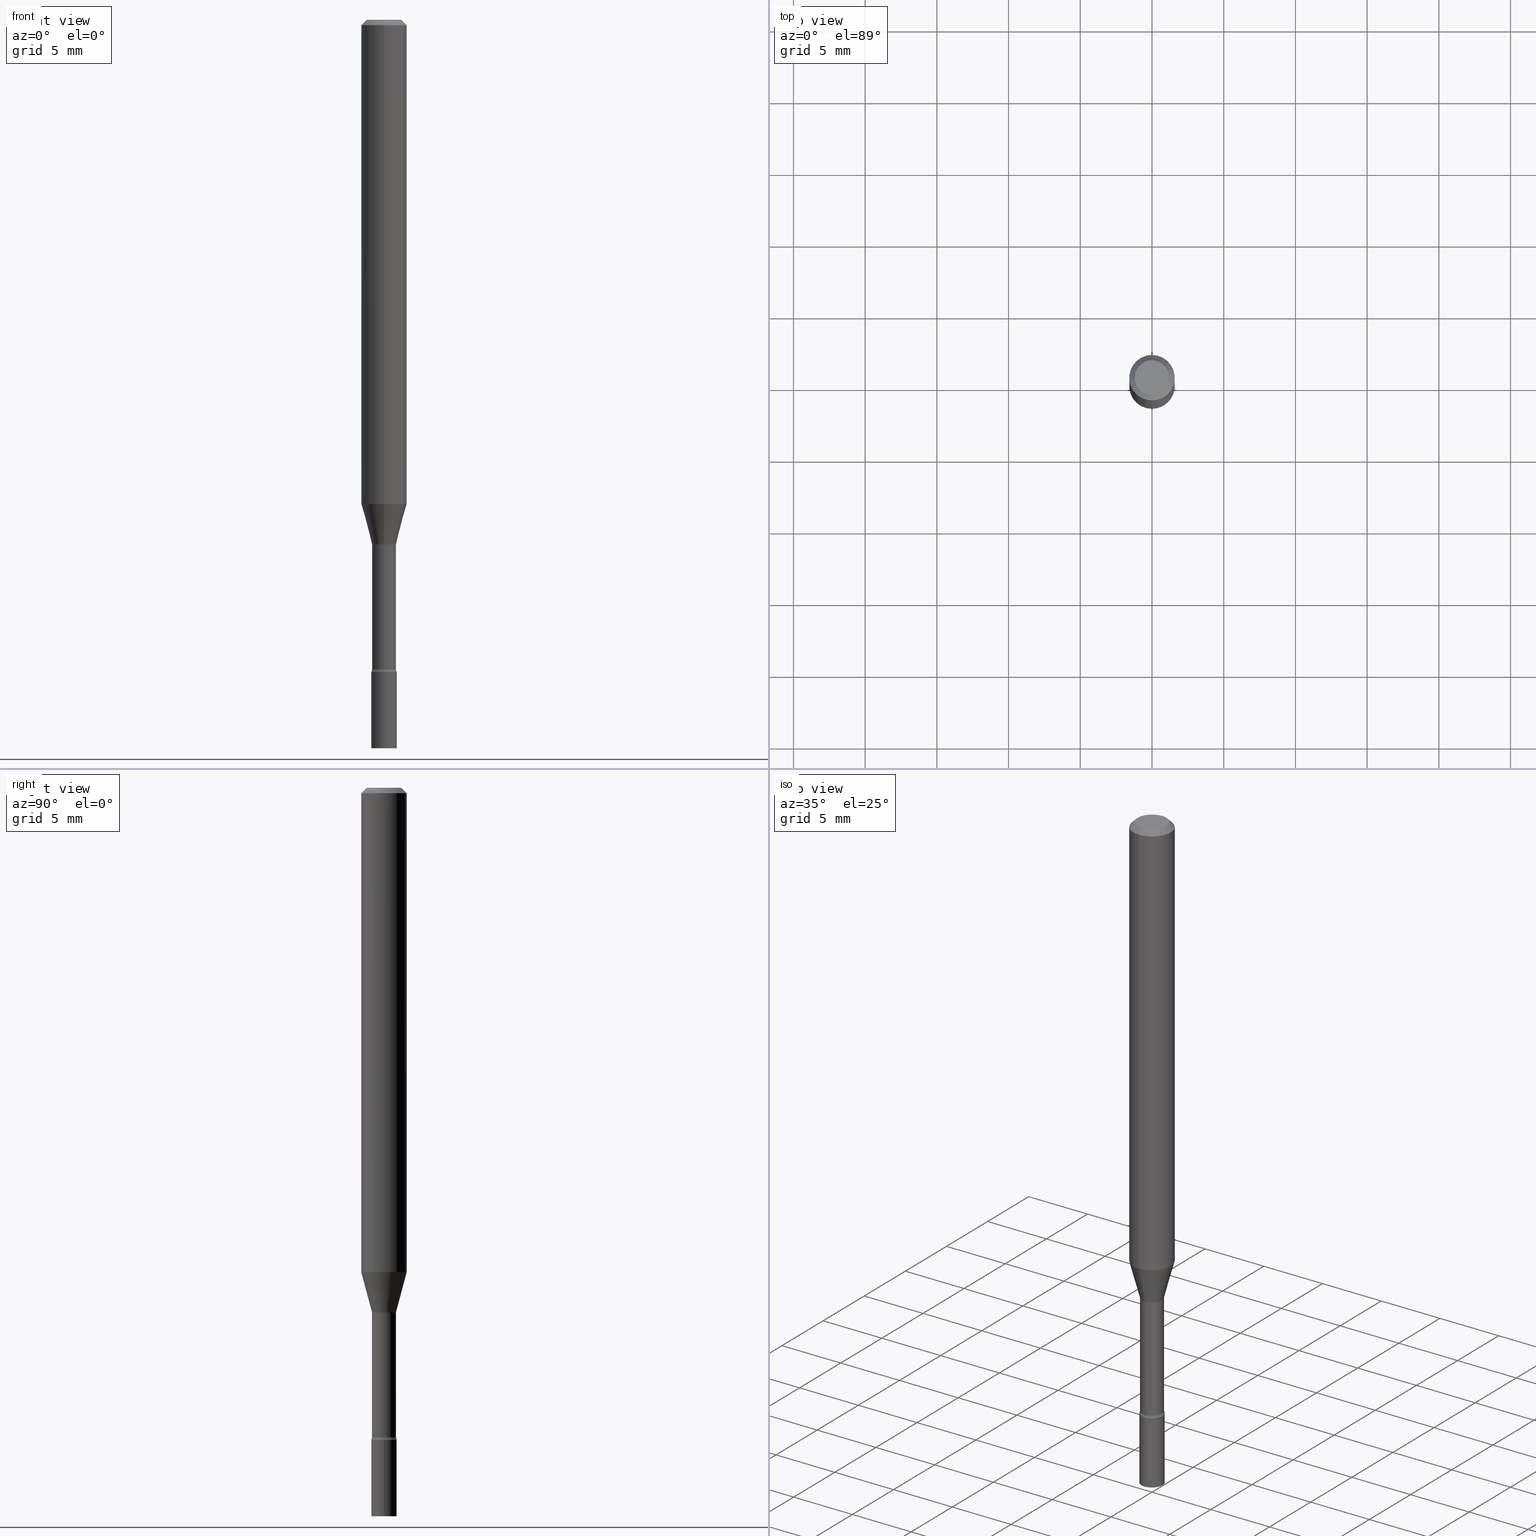
[diagram: canonical four-view strip — front | top / right | iso, engineering-drawing reading convention]
A machine part, canonical four-view strip (front | top / right | iso — engineering-drawing reading convention). The complete STEP part file that produces these views, byte-faithful:
ISO-10303-21;
HEADER;
FILE_DESCRIPTION (( 'STEP AP203' ),
    '1' );
FILE_NAME ('01326.STEP',
    '2024-03-08T21:14:12',
    ( '' ),
    ( '' ),
    'SwSTEP 2.0',
    'SolidWorks 2023',
    '' );
FILE_SCHEMA (( 'CONFIG_CONTROL_DESIGN' ));
ENDSEC;

DATA;
#1 = ORIENTED_EDGE ( 'NONE', *, *, #173, .T. ) ;
#2 = CARTESIAN_POINT ( 'NONE',  ( -2.297394720958429005E-16, -0.03290000000000503633, -1.441974787463810914 ) ) ;
#3 = ORIENTED_EDGE ( 'NONE', *, *, #240, .T. ) ;
#4 = FACE_OUTER_BOUND ( 'NONE', #79, .T. ) ;
#5 = DIRECTION ( 'NONE',  ( -6.982962677686265922E-15, -1.000000000000000000, 3.491429120456710013E-15 ) ) ;
#6 = LINE ( 'NONE', #322, #106 ) ;
#7 = CIRCLE ( 'NONE', #224, 0.03500000000000000333 ) ;
#8 = DIRECTION ( 'NONE',  ( -6.982962677686265133E-15, -1.000000000000000000, 0.000000000000000000 ) ) ;
#9 = ORIENTED_EDGE ( 'NONE', *, *, #265, .T. ) ;
#10 = COORDINATED_UNIVERSAL_TIME_OFFSET ( 5, 0, .BEHIND. ) ;
#11 = DIRECTION ( 'NONE',  ( -2.445505270089493471E-29, 3.491429120456710013E-15, 1.000000000000000000 ) ) ;
#12 = DIRECTION ( 'NONE',  ( -2.445505270089493471E-29, 3.491429120456710013E-15, 1.000000000000000000 ) ) ;
#13 = FACE_OUTER_BOUND ( 'NONE', #134, .T. ) ;
#14 = ORIENTED_EDGE ( 'NONE', *, *, #383, .T. ) ;
#15 = APPROVAL_ROLE ( '' ) ;
#16 = EDGE_CURVE ( 'NONE', #390, #435, #164, .T. ) ;
#17 = CIRCLE ( 'NONE', #111, 0.03500000000000000333 ) ;
#18 = AXIS2_PLACEMENT_3D ( 'NONE', #19, #457, #147 ) ;
#19 = CARTESIAN_POINT ( 'NONE',  ( 4.377389163071394665E-29, -6.249751596529231267E-15, -1.790000000000000036 ) ) ;
#20 = CALENDAR_DATE ( 2024, 8, 3 ) ;
#21 = DIRECTION ( 'NONE',  ( 1.000000000000000000, -6.982962677686276966E-15, 0.000000000000000000 ) ) ;
#22 = COORDINATED_UNIVERSAL_TIME_OFFSET ( 5, 0, .BEHIND. ) ;
#23 = CARTESIAN_POINT ( 'NONE',  ( 3.516862791996960792E-29, -5.020998038650528484E-15, -1.438092501787272992 ) ) ;
#24 = CARTESIAN_POINT ( 'NONE',  ( -0.03500000000000000333, -6.367667179591725930E-15, -2.000000000000000000 ) ) ;
#25 = ADVANCED_FACE ( 'NONE', ( #70 ), #73, .T. ) ;
#26 = LINE ( 'NONE', #347, #463 ) ;
#27 = CIRCLE ( 'NONE', #310, 0.03500000000000000333 ) ;
#28 = CIRCLE ( 'NONE', #502, 0.03290000000000000563 ) ;
#29 = ORIENTED_EDGE ( 'NONE', *, *, #389, .F. ) ;
#30 = FACE_OUTER_BOUND ( 'NONE', #303, .T. ) ;
#31 = ADVANCED_FACE ( 'NONE', ( #337 ), #447, .T. ) ;
#32 = VECTOR ( 'NONE', #409, 39.37007874015748143 ) ;
#33 = DIRECTION ( 'NONE',  ( -2.445468806185136597E-29, 3.491481338843145583E-15, 1.000000000000000000 ) ) ;
#34 = ORIENTED_EDGE ( 'NONE', *, *, #487, .T. ) ;
#35 = EDGE_CURVE ( 'NONE', #435, #372, #280, .T. ) ;
#36 = CARTESIAN_POINT ( 'NONE',  ( -2.444036937189758391E-16, -0.03500000000000629691, -1.789999999999999813 ) ) ;
#37 = AXIS2_PLACEMENT_3D ( 'NONE', #196, #84, #244 ) ;
#38 = DIRECTION ( 'NONE',  ( -2.445505270089493471E-29, 3.491429120456710013E-15, 1.000000000000000000 ) ) ;
#39 = ORIENTED_EDGE ( 'NONE', *, *, #148, .T. ) ;
#40 = CARTESIAN_POINT ( 'NONE',  ( 3.516862791996960792E-29, -5.020998038650528484E-15, -1.438092501787272992 ) ) ;
#41 = DIRECTION ( 'NONE',  ( 4.937700262164548042E-15, 0.7071067811865451302, -0.7071067811865499042 ) ) ;
#42 = VERTEX_POINT ( 'NONE', #283 ) ;
#43 = CARTESIAN_POINT ( 'NONE',  ( 4.358670540980283234E-29, -6.223026365132013835E-15, -1.782345589506695971 ) ) ;
#44 = CARTESIAN_POINT ( 'NONE',  ( 4.377389163071394665E-29, -6.249751596529231267E-15, -1.790000000000000036 ) ) ;
#45 = APPROVAL_PERSON_ORGANIZATION ( #93, #349, #15 ) ;
#46 = AXIS2_PLACEMENT_3D ( 'NONE', #117, #299, #346 ) ;
#47 = COORDINATED_UNIVERSAL_TIME_OFFSET ( 5, 0, .BEHIND. ) ;
#48 = CIRCLE ( 'NONE', #351, 0.03341111260566399094 ) ;
#49 = CARTESIAN_POINT ( 'NONE',  ( 4.377454433460193529E-29, -6.249658125617510272E-15, -1.790000000000000036 ) ) ;
#50 = DIRECTION ( 'NONE',  ( -2.445468806185136877E-29, 3.491481338843145188E-15, 1.000000000000000000 ) ) ;
#51 = SHAPE_DEFINITION_REPRESENTATION ( #482, #109 ) ;
#52 = EDGE_CURVE ( 'NONE', #307, #397, #342, .T. ) ;
#53 = DIRECTION ( 'NONE',  ( -2.445505270089493471E-29, 3.491429120456710013E-15, 1.000000000000000000 ) ) ;
#54 = EDGE_CURVE ( 'NONE', #372, #435, #17, .T. ) ;
#55 = DIRECTION ( 'NONE',  ( 1.000000000000000000, 0.000000000000000000, 0.000000000000000000 ) ) ;
#56 = DIRECTION ( 'NONE',  ( -6.982962677686265922E-15, -1.000000000000000000, 0.000000000000000000 ) ) ;
#57 = ADVANCED_FACE ( 'NONE', ( #330 ), #412, .F. ) ;
#58 = APPROVAL_ROLE ( '' ) ;
#59 =( GEOMETRIC_REPRESENTATION_CONTEXT ( 3 ) GLOBAL_UNCERTAINTY_ASSIGNED_CONTEXT ( ( #245 ) ) GLOBAL_UNIT_ASSIGNED_CONTEXT ( ( #456, #505, #63 ) ) REPRESENTATION_CONTEXT ( 'NONE', 'WORKASPACE' ) );
#60 = AXIS2_PLACEMENT_3D ( 'NONE', #253, #478, #467 ) ;
#61 = CARTESIAN_POINT ( 'NONE',  ( 3.840629472727447874E-16, 0.04749999999999999362, -1.947592745229184365E-16 ) ) ;
#62 = DIRECTION ( 'NONE',  ( -6.982962677686265133E-15, -1.000000000000000000, 0.000000000000000000 ) ) ;
#63 =( NAMED_UNIT ( * ) SI_UNIT ( $, .STERADIAN. ) SOLID_ANGLE_UNIT ( ) );
#64 = DIRECTION ( 'NONE',  ( -6.982962677686263555E-15, -1.000000000000000000, 0.000000000000000000 ) ) ;
#65 = CARTESIAN_POINT ( 'NONE',  ( -3.344839122611368617E-16, -0.04790000000000502883, -1.441974787463810692 ) ) ;
#66 = AXIS2_PLACEMENT_3D ( 'NONE', #65, #105, #64 ) ;
#67 = CARTESIAN_POINT ( 'NONE',  ( 0.000000000000000000, 0.000000000000000000, 0.000000000000000000 ) ) ;
#68 = CIRCLE ( 'NONE', #366, 0.06250000000000000000 ) ;
#69 = ORIENTED_EDGE ( 'NONE', *, *, #128, .T. ) ;
#70 = FACE_OUTER_BOUND ( 'NONE', #170, .T. ) ;
#71 = EDGE_CURVE ( 'NONE', #386, #42, #27, .T. ) ;
#72 = ORIENTED_EDGE ( 'NONE', *, *, #271, .F. ) ;
#73 = CONICAL_SURFACE ( 'NONE', #450, 0.03341111260566399094, 0.2617993877991494633 ) ;
#74 = AXIS2_PLACEMENT_3D ( 'NONE', #433, #385, #21 ) ;
#75 = DIRECTION ( 'NONE',  ( -2.445505270089493752E-29, 3.491429120456710013E-15, 1.000000000000000000 ) ) ;
#76 = VERTEX_POINT ( 'NONE', #492 ) ;
#77 = LENGTH_MEASURE_WITH_UNIT ( LENGTH_MEASURE( 0.02539999999999999897 ), #276 );
#78 = EDGE_CURVE ( 'NONE', #250, #42, #488, .T. ) ;
#79 = EDGE_LOOP ( 'NONE', ( #361, #345, #162, #359 ) ) ;
#80 = CARTESIAN_POINT ( 'NONE',  ( 4.440892098500948609E-16, 0.06249999999999532319, -1.329531296095961546 ) ) ;
#81 = ORIENTED_EDGE ( 'NONE', *, *, #78, .T. ) ;
#82 = DIRECTION ( 'NONE',  ( -2.445505270089493471E-29, 3.491429120456710013E-15, 1.000000000000000000 ) ) ;
#83 = CARTESIAN_POINT ( 'NONE',  ( 3.526304362048191557E-29, -5.034628061512206795E-15, -1.441974787463810914 ) ) ;
#84 = DIRECTION ( 'NONE',  ( 2.445505270089493471E-29, -3.491429120456710013E-15, -1.000000000000000000 ) ) ;
#85 = DIRECTION ( 'NONE',  ( -6.982962677686265922E-15, -1.000000000000000000, 4.370956789862821150E-15 ) ) ;
#86 = DIRECTION ( 'NONE',  ( -6.982962677686265922E-15, -1.000000000000000000, 3.491429120456709618E-15 ) ) ;
#87 = DIRECTION ( 'NONE',  ( -2.445468806185136597E-29, 3.491481338843145583E-15, 1.000000000000000000 ) ) ;
#88 = ORIENTED_EDGE ( 'NONE', *, *, #272, .T. ) ;
#89 = APPROVAL_STATUS ( 'not_yet_approved' ) ;
#90 = TOROIDAL_SURFACE ( 'NONE', #432, 0.04790000000000003977, 0.01500000000000007924 ) ;
#91 = CARTESIAN_POINT ( 'NONE',  ( 2.444036937190630575E-16, 0.03499999999999375139, -1.790000000000000036 ) ) ;
#92 = ADVANCED_FACE ( 'NONE', ( #374 ), #357, .F. ) ;
#93 = PERSON_AND_ORGANIZATION ( #229, #472 ) ;
#94 = DIRECTION ( 'NONE',  ( -2.445468806185136597E-29, 3.491481338843145583E-15, 1.000000000000000000 ) ) ;
#95 = APPLICATION_PROTOCOL_DEFINITION ( 'international standard', 'config_control_design', 1994, #501 ) ;
#96 = CARTESIAN_POINT ( 'NONE',  ( 0.03500000000000000333, -7.227366371405310342E-15, -2.000000000000000000 ) ) ;
#97 = VECTOR ( 'NONE', #75, 39.37007874015748143 ) ;
#98 = CARTESIAN_POINT ( 'NONE',  ( 4.440892098500952553E-16, 0.06249999999999993755, -0.01500000000000024751 ) ) ;
#99 = EDGE_CURVE ( 'NONE', #277, #264, #323, .T. ) ;
#100 = DIRECTION ( 'NONE',  ( -6.982962677686265922E-15, -1.000000000000000000, 3.491429120456709618E-15 ) ) ;
#101 = EDGE_LOOP ( 'NONE', ( #316, #305, #514, #194 ) ) ;
#102 = CYLINDRICAL_SURFACE ( 'NONE', #286, 0.06250000000000000000 ) ;
#103 = ORIENTED_EDGE ( 'NONE', *, *, #144, .T. ) ;
#104 = APPROVAL_PERSON_ORGANIZATION ( #257, #209, #334 ) ;
#105 = DIRECTION ( 'NONE',  ( -1.000000000000000000, 6.982962677686265922E-15, -4.883557194083112340E-29 ) ) ;
#106 = VECTOR ( 'NONE', #273, 39.37007874015748143 ) ;
#107 = ADVANCED_FACE ( 'NONE', ( #503 ), #406, .F. ) ;
#108 = ORIENTED_EDGE ( 'NONE', *, *, #188, .F. ) ;
#109 = ADVANCED_BREP_SHAPE_REPRESENTATION ( '01326', ( #459, #129, #208 ), #59 ) ;
#110 = EDGE_CURVE ( 'NONE', #307, #205, #331, .T. ) ;
#111 = AXIS2_PLACEMENT_3D ( 'NONE', #285, #452, #124 ) ;
#112 = CIRCLE ( 'NONE', #379, 0.06250000000000000000 ) ;
#113 = ORIENTED_EDGE ( 'NONE', *, *, #110, .F. ) ;
#114 = DIRECTION ( 'NONE',  ( -2.445505270089493471E-29, 3.491429120456710013E-15, 1.000000000000000000 ) ) ;
#115 = VERTEX_POINT ( 'NONE', #248 ) ;
#116 = LINE ( 'NONE', #167, #311 ) ;
#117 = CARTESIAN_POINT ( 'NONE',  ( 0.000000000000000000, 0.000000000000000000, 0.000000000000000000 ) ) ;
#118 = DIRECTION ( 'NONE',  ( -2.445468806185136597E-29, 3.491481338843145583E-15, 1.000000000000000000 ) ) ;
#119 = LOCAL_TIME ( 16, 14, 12.00000000000000000, #139 ) ;
#120 = AXIS2_PLACEMENT_3D ( 'NONE', #49, #11, #56 ) ;
#121 = CC_DESIGN_PERSON_AND_ORGANIZATION_ASSIGNMENT ( #422, #373, ( #415 ) ) ;
#122 = AXIS2_PLACEMENT_3D ( 'NONE', #133, #290, #512 ) ;
#123 = DIRECTION ( 'NONE',  ( -6.982962677686266711E-15, -1.000000000000000000, 0.000000000000000000 ) ) ;
#124 = DIRECTION ( 'NONE',  ( -6.982962677686265922E-15, -1.000000000000000000, 0.000000000000000000 ) ) ;
#125 = LINE ( 'NONE', #445, #423 ) ;
#126 = DIRECTION ( 'NONE',  ( -2.445505270089493191E-29, 3.491429120456710013E-15, 1.000000000000000000 ) ) ;
#127 = CALENDAR_DATE ( 2024, 8, 3 ) ;
#128 = EDGE_CURVE ( 'NONE', #277, #313, #239, .T. ) ;
#129 = MANIFOLD_SOLID_BREP ( 'Body-Move/Copy2[2]', #479 ) ;
#130 = DIRECTION ( 'NONE',  ( 2.438088387897960049E-29, -3.491481338843145188E-15, -1.000000000000000000 ) ) ;
#131 = TOROIDAL_SURFACE ( 'NONE', #140, 0.04790000000000003977, 0.01500000000000007924 ) ;
#132 = EDGE_CURVE ( 'NONE', #498, #166, #437, .T. ) ;
#133 = CARTESIAN_POINT ( 'NONE',  ( 3.668257905134247424E-31, -5.237143680685075742E-17, -0.01500000000000003067 ) ) ;
#134 = EDGE_LOOP ( 'NONE', ( #29, #103, #327, #504 ) ) ;
#135 = PERSON_AND_ORGANIZATION_ROLE ( 'design_supplier' ) ;
#136 = DIRECTION ( 'NONE',  ( -6.982962677686265922E-15, -1.000000000000000000, 4.370956789862821150E-15 ) ) ;
#137 = APPROVAL_DATE_TIME ( #369, #349 ) ;
#138 = CARTESIAN_POINT ( 'NONE',  ( 2.374002335562077687E-16, 0.03341111260565896718, -1.438092501787272992 ) ) ;
#139 = COORDINATED_UNIVERSAL_TIME_OFFSET ( 5, 0, .BEHIND. ) ;
#140 = AXIS2_PLACEMENT_3D ( 'NONE', #43, #38, #395 ) ;
#141 = DIRECTION ( 'NONE',  ( -2.445505270089493471E-29, 3.491429120456710013E-15, 1.000000000000000000 ) ) ;
#142 = DIRECTION ( 'NONE',  ( 6.982962677686265922E-15, 1.000000000000000000, -3.491429120456710013E-15 ) ) ;
#143 = FACE_OUTER_BOUND ( 'NONE', #247, .T. ) ;
#144 = EDGE_CURVE ( 'NONE', #313, #115, #419, .T. ) ;
#145 = ORIENTED_EDGE ( 'NONE', *, *, #309, .F. ) ;
#146 = EDGE_CURVE ( 'NONE', #42, #386, #296, .T. ) ;
#147 = DIRECTION ( 'NONE',  ( 1.000000000000000000, -6.982962677686265922E-15, 4.876176775795935793E-29 ) ) ;
#148 = EDGE_CURVE ( 'NONE', #250, #254, #7, .T. ) ;
#149 = AXIS2_PLACEMENT_3D ( 'NONE', #493, #519, #234 ) ;
#150 = ORIENTED_EDGE ( 'NONE', *, *, #35, .T. ) ;
#151 = DIRECTION ( 'NONE',  ( -2.445505270089493471E-29, 3.491429120456710013E-15, 1.000000000000000000 ) ) ;
#152 = EDGE_LOOP ( 'NONE', ( #200, #333 ) ) ;
#153 = CIRCLE ( 'NONE', #343, 0.04749999999999999362 ) ;
#154 = CARTESIAN_POINT ( 'NONE',  ( -0.03500000000000000333, -6.367667179591725930E-15, -1.790000000000000036 ) ) ;
#155 = ORIENTED_EDGE ( 'NONE', *, *, #188, .T. ) ;
#156 = ORIENTED_EDGE ( 'NONE', *, *, #309, .T. ) ;
#157 = CYLINDRICAL_SURFACE ( 'NONE', #491, 0.03500000000000000333 ) ;
#158 = CC_DESIGN_PERSON_AND_ORGANIZATION_ASSIGNMENT ( #294, #211, ( #197 ) ) ;
#159 = DIRECTION ( 'NONE',  ( 7.105427357600998703E-15, 1.000000000000000000, 0.000000000000000000 ) ) ;
#160 = ORIENTED_EDGE ( 'NONE', *, *, #272, .F. ) ;
#161 = DIRECTION ( 'NONE',  ( -2.445505270089493471E-29, 3.491429120456710013E-15, 1.000000000000000000 ) ) ;
#162 = ORIENTED_EDGE ( 'NONE', *, *, #99, .T. ) ;
#163 = LOCAL_TIME ( 16, 14, 12.00000000000000000, #47 ) ;
#164 = CIRCLE ( 'NONE', #60, 0.01500000000000007924 ) ;
#165 = AXIS2_PLACEMENT_3D ( 'NONE', #232, #270, #189 ) ;
#166 = VERTEX_POINT ( 'NONE', #377 ) ;
#167 = CARTESIAN_POINT ( 'NONE',  ( -2.333085523452895883E-16, -0.03341111260566900776, -1.438092501787272992 ) ) ;
#168 = CARTESIAN_POINT ( 'NONE',  ( 3.516862791996960792E-29, -5.020998038650528484E-15, -1.438092501787272992 ) ) ;
#169 = APPROVAL ( #89, 'UNSPECIFIED' ) ;
#170 = EDGE_LOOP ( 'NONE', ( #14, #399, #72, #321 ) ) ;
#171 = SECURITY_CLASSIFICATION_LEVEL ( 'unclassified' ) ;
#172 = DIRECTION ( 'NONE',  ( -6.982962677686266711E-15, -1.000000000000000000, 0.000000000000000000 ) ) ;
#173 = EDGE_CURVE ( 'NONE', #420, #205, #516, .T. ) ;
#174 = EDGE_LOOP ( 'NONE', ( #475, #438 ) ) ;
#175 = MECHANICAL_CONTEXT ( 'NONE', #469, 'mechanical' ) ;
#176 = DIRECTION ( 'NONE',  ( -2.445505270089493471E-29, 3.491429120456710013E-15, 1.000000000000000000 ) ) ;
#177 = EDGE_LOOP ( 'NONE', ( #9, #156, #453, #160 ) ) ;
#178 = COORDINATED_UNIVERSAL_TIME_OFFSET ( 5, 0, .BEHIND. ) ;
#179 = DIRECTION ( 'NONE',  ( -2.445505270089493471E-29, 3.491429120456710013E-15, 1.000000000000000000 ) ) ;
#180 = DIRECTION ( 'NONE',  ( 0.000000000000000000, 0.000000000000000000, 1.000000000000000000 ) ) ;
#181 = CARTESIAN_POINT ( 'NONE',  ( 3.316907271900976096E-16, 0.04749999999999999362, -1.803010788723060737E-16 ) ) ;
#182 = ADVANCED_FACE ( 'NONE', ( #497 ), #315, .T. ) ;
#183 = CARTESIAN_POINT ( 'NONE',  ( 4.358735532259390602E-29, -6.222933293921259264E-15, -1.782345589506695971 ) ) ;
#184 = AXIS2_PLACEMENT_3D ( 'NONE', #83, #53, #363 ) ;
#185 = AXIS2_PLACEMENT_3D ( 'NONE', #455, #130, #287 ) ;
#186 = ADVANCED_FACE ( 'NONE', ( #13 ), #451, .T. ) ;
#187 = DIRECTION ( 'NONE',  ( -2.445505270089493752E-29, 3.491429120456710013E-15, 1.000000000000000000 ) ) ;
#188 = EDGE_CURVE ( 'NONE', #498, #264, #302, .T. ) ;
#189 = DIRECTION ( 'NONE',  ( -6.982962677686265922E-15, -1.000000000000000000, 0.000000000000000000 ) ) ;
#190 = EDGE_LOOP ( 'NONE', ( #113, #348, #275, #1 ) ) ;
#191 = DESIGN_CONTEXT ( 'detailed design', #501, 'design' ) ;
#192 = EDGE_CURVE ( 'NONE', #397, #420, #480, .T. ) ;
#193 = DIRECTION ( 'NONE',  ( -2.445468806185136877E-29, 3.491481338843145188E-15, 1.000000000000000000 ) ) ;
#194 = ORIENTED_EDGE ( 'NONE', *, *, #192, .F. ) ;
#195 = EDGE_LOOP ( 'NONE', ( #485, #402, #476, #324 ) ) ;
#196 = CARTESIAN_POINT ( 'NONE',  ( 3.668257905134247424E-31, -5.237143680685075742E-17, -0.01500000000000003067 ) ) ;
#197 = SECURITY_CLASSIFICATION ( '', '', #171 ) ;
#198 = VECTOR ( 'NONE', #41, 39.37007874015748143 ) ;
#199 = CONICAL_SURFACE ( 'NONE', #358, 0.03341111260566399094, 0.2617993877991494633 ) ;
#200 = ORIENTED_EDGE ( 'NONE', *, *, #146, .T. ) ;
#201 = CARTESIAN_POINT ( 'NONE',  ( 4.358670540980283234E-29, -6.223026365132013835E-15, -1.782345589506695971 ) ) ;
#202 = EDGE_CURVE ( 'NONE', #390, #76, #393, .T. ) ;
#203 = EDGE_LOOP ( 'NONE', ( #145, #441, #88, #416 ) ) ;
#204 = CARTESIAN_POINT ( 'NONE',  ( 3.403499704291231294E-16, 0.04789999999999496050, -1.441974787463811136 ) ) ;
#205 = VERTEX_POINT ( 'NONE', #381 ) ;
#206 = CYLINDRICAL_SURFACE ( 'NONE', #241, 0.03500000000000000333 ) ;
#207 = DIRECTION ( 'NONE',  ( 1.000000000000000000, -6.982962677686276966E-15, 0.000000000000000000 ) ) ;
#208 = AXIS2_PLACEMENT_3D ( 'NONE', #340, #180, #55 ) ;
#209 = APPROVAL ( #297, 'UNSPECIFIED' ) ;
#210 = CIRCLE ( 'NONE', #304, 0.03289999999999995706 ) ;
#211 = PERSON_AND_ORGANIZATION_ROLE ( 'classification_officer' ) ;
#212 = DIRECTION ( 'NONE',  ( -6.982962677686265133E-15, -1.000000000000000000, 3.491429120456710013E-15 ) ) ;
#213 = ADVANCED_FACE ( 'NONE', ( #266 ), #293, .T. ) ;
#214 = CALENDAR_DATE ( 2024, 8, 3 ) ;
#215 = CARTESIAN_POINT ( 'NONE',  ( 3.526356942078927021E-29, -5.034552763915523754E-15, -1.441974787463810914 ) ) ;
#216 = EDGE_LOOP ( 'NONE', ( #69, #495 ) ) ;
#217 = APPROVAL_DATE_TIME ( #417, #209 ) ;
#218 = CARTESIAN_POINT ( 'NONE',  ( 7.071518731911501073E-46, -1.009595306476170390E-31, -2.891639130122470725E-17 ) ) ;
#219 = PRODUCT_RELATED_PRODUCT_CATEGORY ( 'detail', '', ( #415 ) ) ;
#220 = FACE_OUTER_BOUND ( 'NONE', #203, .T. ) ;
#221 = DIRECTION ( 'NONE',  ( -2.445505270089493471E-29, 3.491429120456710013E-15, 1.000000000000000000 ) ) ;
#222 = CARTESIAN_POINT ( 'NONE',  ( 3.407447217031514627E-16, 0.03341111260565896718, -1.438092501787272992 ) ) ;
#223 = EDGE_CURVE ( 'NONE', #115, #264, #112, .T. ) ;
#224 = AXIS2_PLACEMENT_3D ( 'NONE', #370, #94, #414 ) ;
#225 = ORIENTED_EDGE ( 'NONE', *, *, #265, .F. ) ;
#226 = AXIS2_PLACEMENT_3D ( 'NONE', #168, #367, #8 ) ;
#227 = CIRCLE ( 'NONE', #518, 0.06250000000000000000 ) ;
#228 = DIRECTION ( 'NONE',  ( -2.445505270089493471E-29, 3.491429120456710013E-15, 1.000000000000000000 ) ) ;
#229 = PERSON ( 'UNSPECIFIED', 'UNSPECIFIED', 'UNSPECIFIED', ('UNSPECIFIED'), ('UNSPECIFIED'), ('UNSPECIFIED') ) ;
#230 = ORIENTED_EDGE ( 'NONE', *, *, #520, .F. ) ;
#231 = AXIS2_PLACEMENT_3D ( 'NONE', #44, #87, #207 ) ;
#232 = CARTESIAN_POINT ( 'NONE',  ( 4.358735532259390602E-29, -6.222933293921259264E-15, -1.782345589506695971 ) ) ;
#233 = EDGE_LOOP ( 'NONE', ( #470, #391 ) ) ;
#234 = DIRECTION ( 'NONE',  ( -6.982962677686263555E-15, -1.000000000000000000, 0.000000000000000000 ) ) ;
#235 = ORIENTED_EDGE ( 'NONE', *, *, #487, .F. ) ;
#236 = ORIENTED_EDGE ( 'NONE', *, *, #223, .F. ) ;
#237 = EDGE_CURVE ( 'NONE', #307, #498, #384, .T. ) ;
#238 = FACE_OUTER_BOUND ( 'NONE', #375, .T. ) ;
#239 = CIRCLE ( 'NONE', #319, 0.04749999999999999362 ) ;
#240 = EDGE_CURVE ( 'NONE', #254, #250, #332, .T. ) ;
#241 = AXIS2_PLACEMENT_3D ( 'NONE', #442, #33, #242 ) ;
#242 = DIRECTION ( 'NONE',  ( 1.000000000000000000, -6.982962677686265922E-15, 4.876176775795936353E-29 ) ) ;
#243 = CARTESIAN_POINT ( 'NONE',  ( 4.364351673553919652E-16, 0.06249999999999995143, -0.01500000000000024751 ) ) ;
#244 = DIRECTION ( 'NONE',  ( 6.982962677686265922E-15, 1.000000000000000000, -3.483106191921935554E-15 ) ) ;
#245 = UNCERTAINTY_MEASURE_WITH_UNIT (LENGTH_MEASURE( 1.000000000000000082E-05 ), #456, 'distance_accuracy_value', 'NONE');
#246 = CARTESIAN_POINT ( 'NONE',  ( -4.287811248607203282E-16, -0.06250000000000005551, -0.01499999999999981209 ) ) ;
#247 = EDGE_LOOP ( 'NONE', ( #108, #449, #388, #396 ) ) ;
#248 = CARTESIAN_POINT ( 'NONE',  ( -4.364351673553912750E-16, -0.06250000000000005551, -0.01499999999999981209 ) ) ;
#249 = AXIS2_PLACEMENT_3D ( 'NONE', #181, #429, #142 ) ;
#250 = VERTEX_POINT ( 'NONE', #96 ) ;
#251 = APPROVAL_DATE_TIME ( #380, #169 ) ;
#252 = DIRECTION ( 'NONE',  ( 1.000000000000000000, -7.105427357601001070E-15, 4.926314869051284576E-29 ) ) ;
#253 = CARTESIAN_POINT ( 'NONE',  ( 3.403499704291318069E-16, 0.04789999999999381558, -1.782345589506696193 ) ) ;
#254 = VERTEX_POINT ( 'NONE', #24 ) ;
#255 = CARTESIAN_POINT ( 'NONE',  ( 4.377389163071394665E-29, -6.249751596529231267E-15, -1.790000000000000036 ) ) ;
#256 = CC_DESIGN_PERSON_AND_ORGANIZATION_ASSIGNMENT ( #260, #135, ( #288 ) ) ;
#257 = PERSON_AND_ORGANIZATION ( #229, #472 ) ;
#258 = LINE ( 'NONE', #300, #425 ) ;
#259 = CONICAL_SURFACE ( 'NONE', #37, 0.06250000000000000000, 0.7853981633974483900 ) ;
#260 = PERSON_AND_ORGANIZATION ( #229, #472 ) ;
#261 = CARTESIAN_POINT ( 'NONE',  ( 0.000000000000000000, 0.000000000000000000, 0.000000000000000000 ) ) ;
#262 = CC_DESIGN_DATE_AND_TIME_ASSIGNMENT ( #382, #496, ( #197 ) ) ;
#263 = DIRECTION ( 'NONE',  ( -2.445505270089493471E-29, 3.491429120456710013E-15, 1.000000000000000000 ) ) ;
#264 = VERTEX_POINT ( 'NONE', #98 ) ;
#265 = EDGE_CURVE ( 'NONE', #76, #390, #210, .T. ) ;
#266 = FACE_OUTER_BOUND ( 'NONE', #152, .T. ) ;
#267 = APPROVAL_PERSON_ORGANIZATION ( #292, #169, #58 ) ;
#268 = AXIS2_PLACEMENT_3D ( 'NONE', #91, #126, #5 ) ;
#269 = VECTOR ( 'NONE', #339, 39.37007874015748854 ) ;
#270 = DIRECTION ( 'NONE',  ( -2.445505270089493471E-29, 3.491429120456710013E-15, 1.000000000000000000 ) ) ;
#271 = EDGE_CURVE ( 'NONE', #166, #498, #68, .T. ) ;
#272 = EDGE_CURVE ( 'NONE', #76, #420, #258, .T. ) ;
#273 = DIRECTION ( 'NONE',  ( -2.445505270089493752E-29, 3.491429120456710013E-15, 1.000000000000000000 ) ) ;
#274 = ADVANCED_FACE ( 'NONE', ( #424 ), #508, .F. ) ;
#275 = ORIENTED_EDGE ( 'NONE', *, *, #192, .T. ) ;
#276 =( LENGTH_UNIT ( ) NAMED_UNIT ( * ) SI_UNIT ( $, .METRE. ) );
#277 = VERTEX_POINT ( 'NONE', #61 ) ;
#278 = DIRECTION ( 'NONE',  ( -2.445468806185136597E-29, 3.491481338843145583E-15, 1.000000000000000000 ) ) ;
#279 = CC_DESIGN_APPROVAL ( #169, ( #197 ) ) ;
#280 = CIRCLE ( 'NONE', #120, 0.03500000000000000333 ) ;
#281 = DIRECTION ( 'NONE',  ( 1.000000000000000000, -6.982962677686276966E-15, 0.000000000000000000 ) ) ;
#282 = FACE_OUTER_BOUND ( 'NONE', #515, .T. ) ;
#283 = CARTESIAN_POINT ( 'NONE',  ( 0.03500000000000000333, -6.494155290248250444E-15, -1.790000000000000036 ) ) ;
#284 = CARTESIAN_POINT ( 'NONE',  ( 7.071518731911501073E-46, -1.009595306476170390E-31, -2.891639130122470725E-17 ) ) ;
#285 = CARTESIAN_POINT ( 'NONE',  ( 4.377454433460193529E-29, -6.249658125617510272E-15, -1.790000000000000036 ) ) ;
#286 = AXIS2_PLACEMENT_3D ( 'NONE', #67, #228, #387 ) ;
#287 = DIRECTION ( 'NONE',  ( -1.000000000000000000, 6.982962677686265922E-15, -4.876176775795935793E-29 ) ) ;
#288 = PRODUCT_DEFINITION_FORMATION_WITH_SPECIFIED_SOURCE ( 'ANY', '', #415, .NOT_KNOWN. ) ;
#289 = CALENDAR_DATE ( 2024, 8, 3 ) ;
#290 = DIRECTION ( 'NONE',  ( 2.445505270089493471E-29, -3.491429120456710013E-15, -1.000000000000000000 ) ) ;
#291 = ADVANCED_FACE ( 'NONE', ( #220 ), #295, .T. ) ;
#292 = PERSON_AND_ORGANIZATION ( #229, #472 ) ;
#293 = PLANE ( 'NONE',  #18 ) ;
#294 = PERSON_AND_ORGANIZATION ( #229, #472 ) ;
#295 = CYLINDRICAL_SURFACE ( 'NONE', #511, 0.03289999999999998481 ) ;
#296 = CIRCLE ( 'NONE', #231, 0.03500000000000000333 ) ;
#297 = APPROVAL_STATUS ( 'not_yet_approved' ) ;
#298 = DIRECTION ( 'NONE',  ( -2.445505270089493471E-29, 3.491429120456710013E-15, 1.000000000000000000 ) ) ;
#299 = DIRECTION ( 'NONE',  ( -2.445505270089493471E-29, 3.491429120456710013E-15, 1.000000000000000000 ) ) ;
#300 = CARTESIAN_POINT ( 'NONE',  ( -2.297394720958780541E-16, -0.03289999999999998481, 1.148680180630256997E-16 ) ) ;
#301 = EDGE_LOOP ( 'NONE', ( #230, #3, #81, #328 ) ) ;
#302 = LINE ( 'NONE', #471, #97 ) ;
#303 = EDGE_LOOP ( 'NONE', ( #436, #225, #34, #394 ) ) ;
#304 = AXIS2_PLACEMENT_3D ( 'NONE', #183, #179, #506 ) ;
#305 = ORIENTED_EDGE ( 'NONE', *, *, #110, .T. ) ;
#306 = ADVANCED_FACE ( 'NONE', ( #513 ), #466, .T. ) ;
#307 = VERTEX_POINT ( 'NONE', #222 ) ;
#308 = DIRECTION ( 'NONE',  ( -1.807323732225324223E-15, -0.2588190451025173533, 0.9659258262890690894 ) ) ;
#309 = EDGE_CURVE ( 'NONE', #390, #205, #26, .T. ) ;
#310 = AXIS2_PLACEMENT_3D ( 'NONE', #255, #118, #281 ) ;
#311 = VECTOR ( 'NONE', #308, 39.37007874015748854 ) ;
#312 = CARTESIAN_POINT ( 'NONE',  ( -2.333085523452895883E-16, -0.03341111260566900776, -1.438092501787272992 ) ) ;
#313 = VERTEX_POINT ( 'NONE', #344 ) ;
#314 = CARTESIAN_POINT ( 'NONE',  ( 0.000000000000000000, 0.000000000000000000, 0.000000000000000000 ) ) ;
#315 = PLANE ( 'NONE',  #185 ) ;
#316 = ORIENTED_EDGE ( 'NONE', *, *, #52, .F. ) ;
#317 = ORIENTED_EDGE ( 'NONE', *, *, #146, .F. ) ;
#318 = FACE_OUTER_BOUND ( 'NONE', #301, .T. ) ;
#319 = AXIS2_PLACEMENT_3D ( 'NONE', #218, #448, #326 ) ;
#320 = DIRECTION ( 'NONE',  ( -2.445505270089493471E-29, 3.491429120456710013E-15, 1.000000000000000000 ) ) ;
#321 = ORIENTED_EDGE ( 'NONE', *, *, #418, .F. ) ;
#322 = CARTESIAN_POINT ( 'NONE',  ( -4.364351673553916201E-16, -0.06250000000000000000, 2.182143200285443758E-16 ) ) ;
#323 = LINE ( 'NONE', #243, #198 ) ;
#324 = ORIENTED_EDGE ( 'NONE', *, *, #132, .F. ) ;
#325 = PERSON_AND_ORGANIZATION ( #229, #472 ) ;
#326 = DIRECTION ( 'NONE',  ( -6.982962677686266711E-15, -1.000000000000000000, 3.491429120456710801E-15 ) ) ;
#327 = ORIENTED_EDGE ( 'NONE', *, *, #223, .T. ) ;
#328 = ORIENTED_EDGE ( 'NONE', *, *, #71, .F. ) ;
#329 = ADVANCED_FACE ( 'NONE', ( #143 ), #102, .T. ) ;
#330 = FACE_OUTER_BOUND ( 'NONE', #190, .T. ) ;
#331 = CIRCLE ( 'NONE', #401, 0.01500000000000001853 ) ;
#332 = CIRCLE ( 'NONE', #74, 0.03500000000000000333 ) ;
#333 = ORIENTED_EDGE ( 'NONE', *, *, #71, .T. ) ;
#334 = APPROVAL_ROLE ( '' ) ;
#335 = ADVANCED_FACE ( 'NONE', ( #30 ), #131, .F. ) ;
#336 = CARTESIAN_POINT ( 'NONE',  ( 3.251375791351587719E-29, -4.641964283747991181E-15, -1.329531296095961101 ) ) ;
#337 = FACE_OUTER_BOUND ( 'NONE', #177, .T. ) ;
#338 = DATE_AND_TIME ( #214, #163 ) ;
#339 = DIRECTION ( 'NONE',  ( 1.839019923739594399E-15, 0.2588190451025241257, 0.9659258262890673130 ) ) ;
#340 = CARTESIAN_POINT ( 'NONE',  ( 0.000000000000000000, 0.000000000000000000, 0.000000000000000000 ) ) ;
#341 = DIRECTION ( 'NONE',  ( -2.445505270089493471E-29, 3.491429120456710013E-15, 1.000000000000000000 ) ) ;
#342 = CIRCLE ( 'NONE', #226, 0.03341111260566399094 ) ;
#343 = AXIS2_PLACEMENT_3D ( 'NONE', #284, #161, #400 ) ;
#344 = CARTESIAN_POINT ( 'NONE',  ( -3.773273898774340269E-16, -0.04749999999999999362, 1.369264919204690097E-16 ) ) ;
#345 = ORIENTED_EDGE ( 'NONE', *, *, #128, .F. ) ;
#346 = DIRECTION ( 'NONE',  ( -6.982962677686265922E-15, -1.000000000000000000, 3.491429120456709618E-15 ) ) ;
#347 = CARTESIAN_POINT ( 'NONE',  ( 2.337685600650728039E-16, 0.03289999999999998481, -1.148680180630256997E-16 ) ) ;
#348 = ORIENTED_EDGE ( 'NONE', *, *, #383, .F. ) ;
#349 = APPROVAL ( #507, 'UNSPECIFIED' ) ;
#350 = CC_DESIGN_SECURITY_CLASSIFICATION ( #197, ( #288 ) ) ;
#351 = AXIS2_PLACEMENT_3D ( 'NONE', #398, #443, #486 ) ;
#352 = EDGE_CURVE ( 'NONE', #205, #420, #28, .T. ) ;
#353 = CC_DESIGN_PERSON_AND_ORGANIZATION_ASSIGNMENT ( #325, #499, ( #362 ) ) ;
#354 = ORIENTED_EDGE ( 'NONE', *, *, #271, .T. ) ;
#355 = AXIS2_PLACEMENT_3D ( 'NONE', #421, #320, #85 ) ;
#356 = DIRECTION ( 'NONE',  ( -6.982962677686265133E-15, -1.000000000000000000, 0.000000000000000000 ) ) ;
#357 = TOROIDAL_SURFACE ( 'NONE', #431, 0.04789999999999999813, 0.01500000000000001506 ) ;
#358 = AXIS2_PLACEMENT_3D ( 'NONE', #40, #114, #356 ) ;
#359 = ORIENTED_EDGE ( 'NONE', *, *, #446, .T. ) ;
#360 = CARTESIAN_POINT ( 'NONE',  ( 3.526356942078927021E-29, -5.034552763915523754E-15, -1.441974787463810914 ) ) ;
#361 = ORIENTED_EDGE ( 'NONE', *, *, #144, .F. ) ;
#362 = PRODUCT_DEFINITION ( 'UNKNOWN', '', #288, #191 ) ;
#363 = DIRECTION ( 'NONE',  ( -6.982962677686265133E-15, -1.000000000000000000, 3.491429120456710013E-15 ) ) ;
#364 = ORIENTED_EDGE ( 'NONE', *, *, #78, .F. ) ;
#365 = FACE_OUTER_BOUND ( 'NONE', #195, .T. ) ;
#366 = AXIS2_PLACEMENT_3D ( 'NONE', #336, #341, #136 ) ;
#367 = DIRECTION ( 'NONE',  ( -2.445505270089493471E-29, 3.491429120456710013E-15, 1.000000000000000000 ) ) ;
#368 = ORIENTED_EDGE ( 'NONE', *, *, #484, .F. ) ;
#369 = DATE_AND_TIME ( #289, #500 ) ;
#370 = CARTESIAN_POINT ( 'NONE',  ( 4.890937612370273194E-29, -6.982962677686291165E-15, -2.000000000000000000 ) ) ;
#371 = ADVANCED_FACE ( 'NONE', ( #282 ), #90, .F. ) ;
#372 = VERTEX_POINT ( 'NONE', #36 ) ;
#373 = PERSON_AND_ORGANIZATION_ROLE ( 'design_owner' ) ;
#374 = FACE_OUTER_BOUND ( 'NONE', #101, .T. ) ;
#375 = EDGE_LOOP ( 'NONE', ( #39, #407, #317, #364 ) ) ;
#376 = LOCAL_TIME ( 16, 14, 12.00000000000000000, #22 ) ;
#377 = CARTESIAN_POINT ( 'NONE',  ( -4.364351673553592768E-16, -0.06250000000000467681, -1.329531296095960879 ) ) ;
#378 = DIMENSIONAL_EXPONENTS ( 1.000000000000000000, 0.000000000000000000, 0.000000000000000000, 0.000000000000000000, 0.000000000000000000, 0.000000000000000000, 0.000000000000000000 ) ;
#379 = AXIS2_PLACEMENT_3D ( 'NONE', #462, #221, #427 ) ;
#380 = DATE_AND_TIME ( #127, #376 ) ;
#381 = CARTESIAN_POINT ( 'NONE',  ( 2.337685600651166350E-16, 0.03289999999999497493, -1.441974787463810914 ) ) ;
#382 = DATE_AND_TIME ( #454, #411 ) ;
#383 = EDGE_CURVE ( 'NONE', #397, #307, #48, .T. ) ;
#384 = LINE ( 'NONE', #138, #269 ) ;
#385 = DIRECTION ( 'NONE',  ( -2.445468806185136597E-29, 3.491481338843145583E-15, 1.000000000000000000 ) ) ;
#386 = VERTEX_POINT ( 'NONE', #154 ) ;
#387 = DIRECTION ( 'NONE',  ( -6.982962677686265922E-15, -1.000000000000000000, 3.491429120456710013E-15 ) ) ;
#388 = ORIENTED_EDGE ( 'NONE', *, *, #484, .T. ) ;
#389 = EDGE_CURVE ( 'NONE', #313, #277, #153, .T. ) ;
#390 = VERTEX_POINT ( 'NONE', #439 ) ;
#391 = ORIENTED_EDGE ( 'NONE', *, *, #240, .F. ) ;
#392 = CC_DESIGN_APPROVAL ( #209, ( #362 ) ) ;
#393 = CIRCLE ( 'NONE', #165, 0.03289999999999995706 ) ;
#394 = ORIENTED_EDGE ( 'NONE', *, *, #54, .T. ) ;
#395 = DIRECTION ( 'NONE',  ( -6.982962677686265922E-15, -1.000000000000000000, 3.491429120456709618E-15 ) ) ;
#396 = ORIENTED_EDGE ( 'NONE', *, *, #446, .F. ) ;
#397 = VERTEX_POINT ( 'NONE', #312 ) ;
#398 = CARTESIAN_POINT ( 'NONE',  ( 3.516862791996960792E-29, -5.020998038650528484E-15, -1.438092501787272992 ) ) ;
#399 = ORIENTED_EDGE ( 'NONE', *, *, #237, .T. ) ;
#400 = DIRECTION ( 'NONE',  ( -6.982962677686266711E-15, -1.000000000000000000, 3.491429120456710801E-15 ) ) ;
#401 = AXIS2_PLACEMENT_3D ( 'NONE', #204, #252, #159 ) ;
#402 = ORIENTED_EDGE ( 'NONE', *, *, #52, .T. ) ;
#403 = CIRCLE ( 'NONE', #149, 0.01500000000000007924 ) ;
#404 = ORIENTED_EDGE ( 'NONE', *, *, #202, .F. ) ;
#405 = DIRECTION ( 'NONE',  ( -6.982962677686265922E-15, -1.000000000000000000, 3.483106191921935554E-15 ) ) ;
#406 = PLANE ( 'NONE',  #268 ) ;
#407 = ORIENTED_EDGE ( 'NONE', *, *, #520, .T. ) ;
#408 = CARTESIAN_POINT ( 'NONE',  ( 3.668257905134247424E-31, -5.237143680685075742E-17, -0.01500000000000003067 ) ) ;
#409 = DIRECTION ( 'NONE',  ( -4.851104656540964275E-15, -0.7071067811865500152, -0.7071067811865450192 ) ) ;
#410 = PERSON_AND_ORGANIZATION_ROLE ( 'creator' ) ;
#411 = LOCAL_TIME ( 16, 14, 12.00000000000000000, #10 ) ;
#412 = TOROIDAL_SURFACE ( 'NONE', #184, 0.04789999999999999813, 0.01500000000000001506 ) ;
#413 = AXIS2_PLACEMENT_3D ( 'NONE', #215, #12, #172 ) ;
#414 = DIRECTION ( 'NONE',  ( 1.000000000000000000, -6.982962677686276966E-15, 0.000000000000000000 ) ) ;
#415 = PRODUCT ( '01326', '01326', '', ( #175 ) ) ;
#416 = ORIENTED_EDGE ( 'NONE', *, *, #352, .F. ) ;
#417 = DATE_AND_TIME ( #20, #119 ) ;
#418 = EDGE_CURVE ( 'NONE', #397, #166, #116, .T. ) ;
#419 = LINE ( 'NONE', #246, #32 ) ;
#420 = VERTEX_POINT ( 'NONE', #2 ) ;
#421 = CARTESIAN_POINT ( 'NONE',  ( 3.251375791351587719E-29, -4.641964283747991181E-15, -1.329531296095961101 ) ) ;
#422 = PERSON_AND_ORGANIZATION ( #229, #472 ) ;
#423 = VECTOR ( 'NONE', #193, 39.37007874015748143 ) ;
#424 = FACE_OUTER_BOUND ( 'NONE', #216, .T. ) ;
#425 = VECTOR ( 'NONE', #510, 39.37007874015748143 ) ;
#426 = APPLICATION_PROTOCOL_DEFINITION ( 'international standard', 'config_control_design', 1994, #469 ) ;
#427 = DIRECTION ( 'NONE',  ( -6.982962677686265922E-15, -1.000000000000000000, 3.483106191921935554E-15 ) ) ;
#428 = DIRECTION ( 'NONE',  ( -6.982962677686265922E-15, -1.000000000000000000, 3.491429120456710013E-15 ) ) ;
#429 = DIRECTION ( 'NONE',  ( 2.445505270089493191E-29, -3.491429120456710013E-15, -1.000000000000000000 ) ) ;
#430 = ADVANCED_FACE ( 'NONE', ( #318 ), #157, .T. ) ;
#431 = AXIS2_PLACEMENT_3D ( 'NONE', #444, #176, #212 ) ;
#432 = AXIS2_PLACEMENT_3D ( 'NONE', #201, #151, #86 ) ;
#433 = CARTESIAN_POINT ( 'NONE',  ( 4.890937612370273194E-29, -6.982962677686291165E-15, -2.000000000000000000 ) ) ;
#434 = ADVANCED_FACE ( 'NONE', ( #238 ), #206, .T. ) ;
#435 = VERTEX_POINT ( 'NONE', #490 ) ;
#436 = ORIENTED_EDGE ( 'NONE', *, *, #16, .F. ) ;
#437 = CIRCLE ( 'NONE', #355, 0.06250000000000000000 ) ;
#438 = ORIENTED_EDGE ( 'NONE', *, *, #35, .F. ) ;
#439 = CARTESIAN_POINT ( 'NONE',  ( 2.412292587905977528E-16, 0.03289999999999373287, -1.782345589506695971 ) ) ;
#440 = CC_DESIGN_DATE_AND_TIME_ASSIGNMENT ( #338, #460, ( #362 ) ) ;
#441 = ORIENTED_EDGE ( 'NONE', *, *, #202, .T. ) ;
#442 = CARTESIAN_POINT ( 'NONE',  ( 0.000000000000000000, 0.000000000000000000, 0.000000000000000000 ) ) ;
#443 = DIRECTION ( 'NONE',  ( -2.445505270089493471E-29, 3.491429120456710013E-15, 1.000000000000000000 ) ) ;
#444 = CARTESIAN_POINT ( 'NONE',  ( 3.526304362048191557E-29, -5.034628061512206795E-15, -1.441974787463810914 ) ) ;
#445 = CARTESIAN_POINT ( 'NONE',  ( -0.03500000000000000333, 2.486899575160350887E-16, -1.721627281589217108E-30 ) ) ;
#446 = EDGE_CURVE ( 'NONE', #264, #115, #227, .T. ) ;
#447 = CYLINDRICAL_SURFACE ( 'NONE', #46, 0.03289999999999998481 ) ;
#448 = DIRECTION ( 'NONE',  ( -2.445505270089493471E-29, 3.491429120456710013E-15, 1.000000000000000000 ) ) ;
#449 = ORIENTED_EDGE ( 'NONE', *, *, #132, .T. ) ;
#450 = AXIS2_PLACEMENT_3D ( 'NONE', #23, #141, #62 ) ;
#451 = CONICAL_SURFACE ( 'NONE', #122, 0.06250000000000000000, 0.7853981633974483900 ) ;
#452 = DIRECTION ( 'NONE',  ( -2.445505270089493471E-29, 3.491429120456710013E-15, 1.000000000000000000 ) ) ;
#453 = ORIENTED_EDGE ( 'NONE', *, *, #173, .F. ) ;
#454 = CALENDAR_DATE ( 2024, 8, 3 ) ;
#455 = CARTESIAN_POINT ( 'NONE',  ( 2.444036937190682344E-16, 0.03499999999999301586, -2.000000000000000000 ) ) ;
#456 =( CONVERSION_BASED_UNIT ( 'INCH', #77 ) LENGTH_UNIT ( ) NAMED_UNIT ( #378 ) );
#457 = DIRECTION ( 'NONE',  ( -2.438088387897960049E-29, 3.491481338843145188E-15, 1.000000000000000000 ) ) ;
#458 = ADVANCED_FACE ( 'NONE', ( #365 ), #199, .T. ) ;
#459 = MANIFOLD_SOLID_BREP ( 'Body-Move/Copy2[1]', #473 ) ;
#460 = DATE_TIME_ROLE ( 'creation_date' ) ;
#461 = CC_DESIGN_APPROVAL ( #349, ( #288 ) ) ;
#462 = CARTESIAN_POINT ( 'NONE',  ( 3.668257905134247424E-31, -5.237143680685075742E-17, -0.01500000000000003067 ) ) ;
#463 = VECTOR ( 'NONE', #187, 39.37007874015748143 ) ;
#464 = CARTESIAN_POINT ( 'NONE',  ( 0.000000000000000000, 0.000000000000000000, 0.000000000000000000 ) ) ;
#465 = CC_DESIGN_PERSON_AND_ORGANIZATION_ASSIGNMENT ( #509, #410, ( #288 ) ) ;
#466 = CYLINDRICAL_SURFACE ( 'NONE', #474, 0.06250000000000000000 ) ;
#467 = DIRECTION ( 'NONE',  ( 7.105427357601001859E-15, 1.000000000000000000, 0.000000000000000000 ) ) ;
#468 = ADVANCED_FACE ( 'NONE', ( #4 ), #259, .T. ) ;
#469 = APPLICATION_CONTEXT ( 'configuration controlled 3d designs of mechanical parts and assemblies' ) ;
#470 = ORIENTED_EDGE ( 'NONE', *, *, #148, .F. ) ;
#471 = CARTESIAN_POINT ( 'NONE',  ( 4.440892098500625669E-16, 0.06250000000000000000, -2.182143200285443758E-16 ) ) ;
#472 = ORGANIZATION ( 'UNSPECIFIED', 'UNSPECIFIED', '' ) ;
#473 = CLOSED_SHELL ( 'NONE', ( #434, #213, #430, #182 ) ) ;
#474 = AXIS2_PLACEMENT_3D ( 'NONE', #464, #263, #428 ) ;
#475 = ORIENTED_EDGE ( 'NONE', *, *, #54, .F. ) ;
#476 = ORIENTED_EDGE ( 'NONE', *, *, #418, .T. ) ;
#477 = EDGE_LOOP ( 'NONE', ( #354, #155, #236, #368 ) ) ;
#478 = DIRECTION ( 'NONE',  ( 1.000000000000000000, -7.105427357601001070E-15, 4.926314869051284576E-29 ) ) ;
#479 = CLOSED_SHELL ( 'NONE', ( #92, #31, #371, #186, #306, #25, #458, #329, #468, #274, #107, #335, #291, #57 ) ) ;
#480 = CIRCLE ( 'NONE', #66, 0.01500000000000001853 ) ;
#481 = DIRECTION ( 'NONE',  ( 1.000000000000000000, -6.982962677686265922E-15, 4.876176775795936353E-29 ) ) ;
#482 = PRODUCT_DEFINITION_SHAPE ( 'NONE', 'NONE',  #362 ) ;
#483 = DIRECTION ( 'NONE',  ( -2.445505270089493471E-29, 3.491429120456710013E-15, 1.000000000000000000 ) ) ;
#484 = EDGE_CURVE ( 'NONE', #166, #115, #6, .T. ) ;
#485 = ORIENTED_EDGE ( 'NONE', *, *, #237, .F. ) ;
#486 = DIRECTION ( 'NONE',  ( -6.982962677686265133E-15, -1.000000000000000000, 0.000000000000000000 ) ) ;
#487 = EDGE_CURVE ( 'NONE', #76, #372, #403, .T. ) ;
#488 = LINE ( 'NONE', #494, #517 ) ;
#489 = ORIENTED_EDGE ( 'NONE', *, *, #16, .T. ) ;
#490 = CARTESIAN_POINT ( 'NONE',  ( 2.486899575160791170E-16, 0.03499999999999379302, -1.790000000000000258 ) ) ;
#491 = AXIS2_PLACEMENT_3D ( 'NONE', #314, #278, #481 ) ;
#492 = CARTESIAN_POINT ( 'NONE',  ( -2.297394720958342723E-16, -0.03290000000000618124, -1.782345589506695971 ) ) ;
#493 = CARTESIAN_POINT ( 'NONE',  ( -3.344839122611288252E-16, -0.04790000000000626396, -1.782345589506695749 ) ) ;
#494 = CARTESIAN_POINT ( 'NONE',  ( 0.03500000000000000333, -2.444036937190193250E-16, 1.706661871528577808E-30 ) ) ;
#495 = ORIENTED_EDGE ( 'NONE', *, *, #389, .T. ) ;
#496 = DATE_TIME_ROLE ( 'classification_date' ) ;
#497 = FACE_OUTER_BOUND ( 'NONE', #233, .T. ) ;
#498 = VERTEX_POINT ( 'NONE', #80 ) ;
#499 = PERSON_AND_ORGANIZATION_ROLE ( 'creator' ) ;
#500 = LOCAL_TIME ( 16, 14, 12.00000000000000000, #178 ) ;
#501 = APPLICATION_CONTEXT ( 'configuration controlled 3d designs of mechanical parts and assemblies' ) ;
#502 = AXIS2_PLACEMENT_3D ( 'NONE', #360, #483, #123 ) ;
#503 = FACE_OUTER_BOUND ( 'NONE', #174, .T. ) ;
#504 = ORIENTED_EDGE ( 'NONE', *, *, #99, .F. ) ;
#505 =( NAMED_UNIT ( * ) PLANE_ANGLE_UNIT ( ) SI_UNIT ( $, .RADIAN. ) );
#506 = DIRECTION ( 'NONE',  ( -6.982962677686265922E-15, -1.000000000000000000, 0.000000000000000000 ) ) ;
#507 = APPROVAL_STATUS ( 'not_yet_approved' ) ;
#508 = PLANE ( 'NONE',  #249 ) ;
#509 = PERSON_AND_ORGANIZATION ( #229, #472 ) ;
#510 = DIRECTION ( 'NONE',  ( -2.445505270089493752E-29, 3.491429120456710013E-15, 1.000000000000000000 ) ) ;
#511 = AXIS2_PLACEMENT_3D ( 'NONE', #261, #298, #100 ) ;
#512 = DIRECTION ( 'NONE',  ( 6.982962677686265922E-15, 1.000000000000000000, -3.483106191921935554E-15 ) ) ;
#513 = FACE_OUTER_BOUND ( 'NONE', #477, .T. ) ;
#514 = ORIENTED_EDGE ( 'NONE', *, *, #352, .T. ) ;
#515 = EDGE_LOOP ( 'NONE', ( #404, #489, #150, #235 ) ) ;
#516 = CIRCLE ( 'NONE', #413, 0.03290000000000000563 ) ;
#517 = VECTOR ( 'NONE', #50, 39.37007874015748143 ) ;
#518 = AXIS2_PLACEMENT_3D ( 'NONE', #408, #82, #405 ) ;
#519 = DIRECTION ( 'NONE',  ( -1.000000000000000000, 6.982962677686265922E-15, -4.883557194083112340E-29 ) ) ;
#520 = EDGE_CURVE ( 'NONE', #254, #386, #125, .T. ) ;
ENDSEC;
END-ISO-10303-21;
